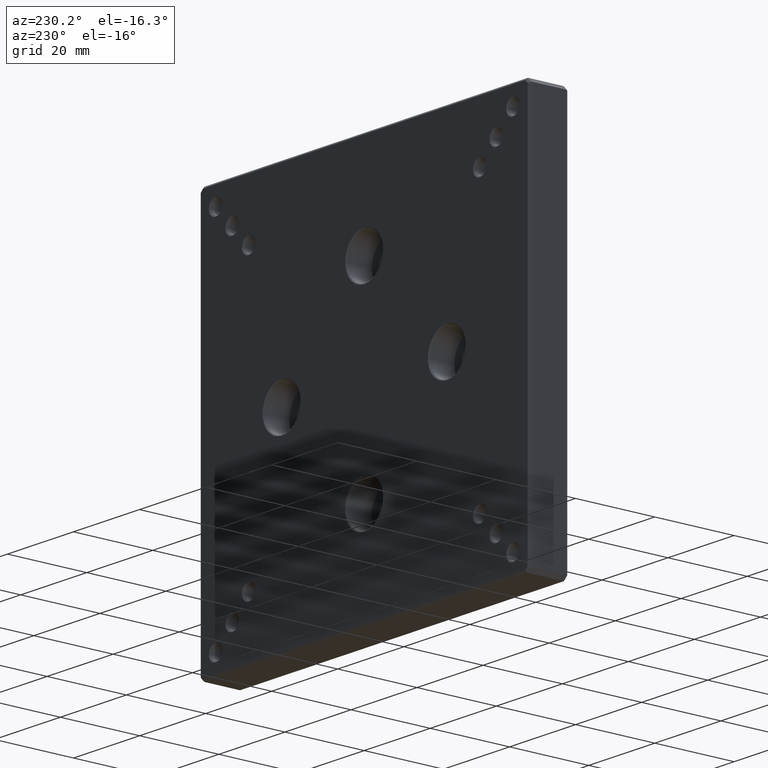
[diagram: clean part render]
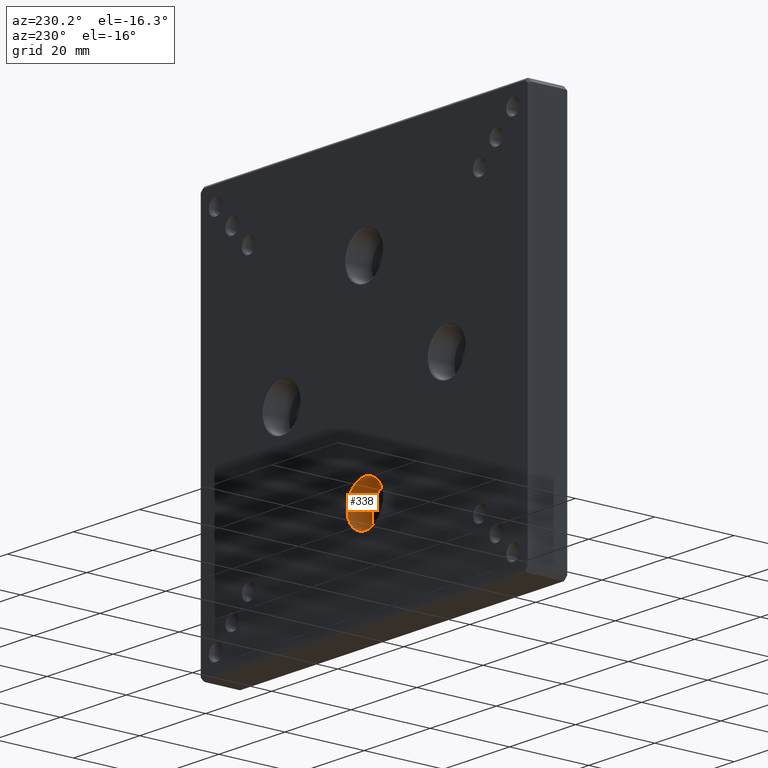
[diagram: same view with one face highlighted and labeled with its STEP entity id]
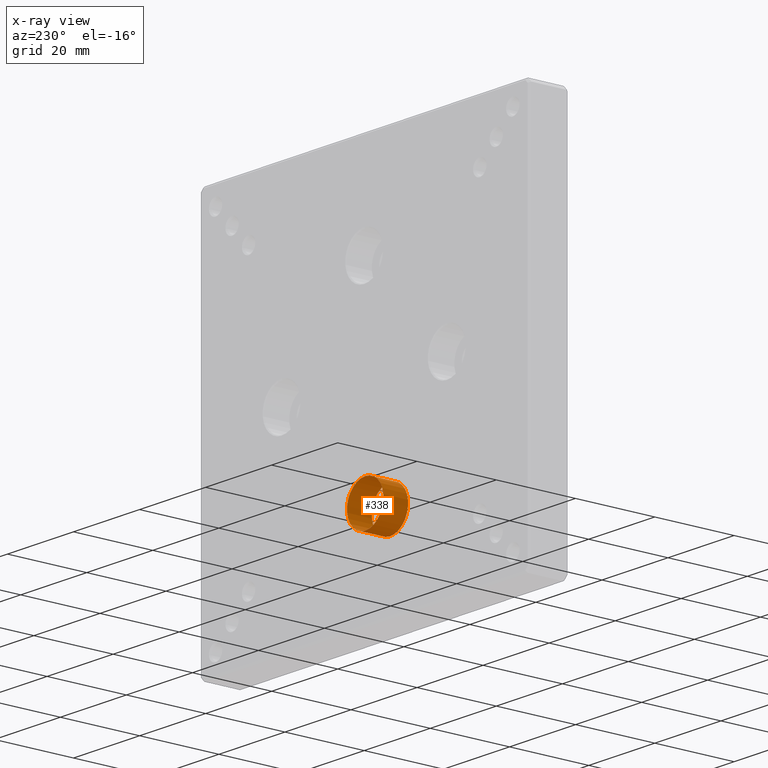
[diagram: x-ray of the same camera — body ghosted, the highlighted face saturated]
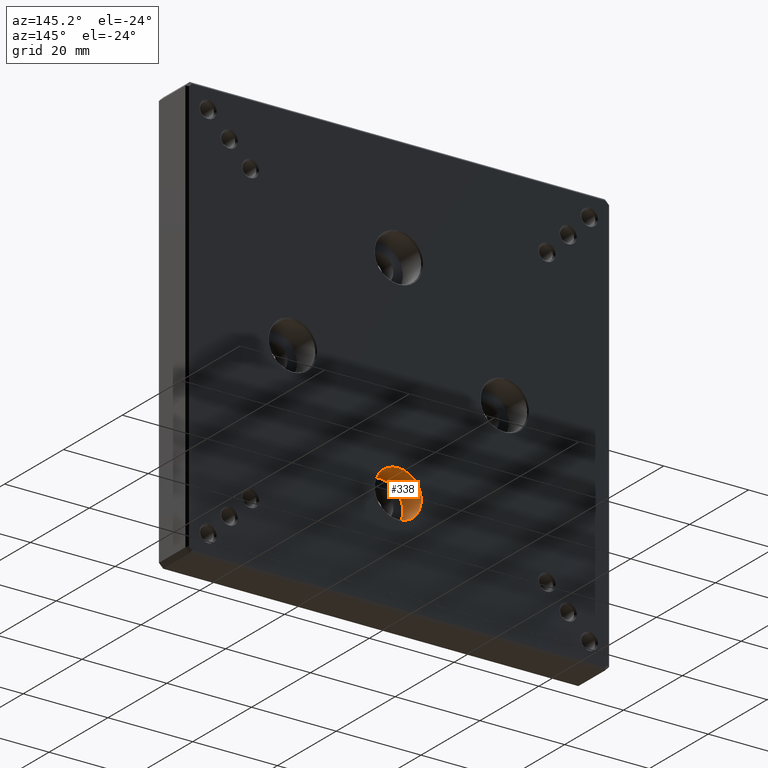
[diagram: same view with one face highlighted and labeled with its STEP entity id]
A machine part, auxiliary view. The second image highlights one B-rep face of the part: STEP entity #338.
The next image is the same camera in x-ray: the body ghosted, the highlighted face saturated — about 0% of this face is hidden behind the body in this view.
A second angle (auxiliary view) of the same face is appended — the face is thin or edge-on in the first view.
In plain terms, the highlighted cylindrical surface (bore or boss wall) has radius 5.5 mm, axis along (-0, 1, -0).
Its self-contained STEP definition (entity closure, byte-faithful):
#83 = DIRECTION ( 'NONE',  ( 0.000000000000000000, 0.000000000000000000, 1.000000000000000000 ) ) ;
#92 = CARTESIAN_POINT ( 'NONE',  ( -3.469446951953614189E-15, 9.749999999999975131, -25.00000000000000711 ) ) ;
#338 = ADVANCED_FACE ( 'NONE', ( #1579, #1378 ), #1242, .F. ) ;
#465 = EDGE_LOOP ( 'NONE', ( #1411 ) ) ;
#489 = AXIS2_PLACEMENT_3D ( 'NONE', #1357, #533, #1365 ) ;
#527 = CIRCLE ( 'NONE', #936, 5.500000000000011546 ) ;
#533 = DIRECTION ( 'NONE',  ( -0.000000000000000000, 1.000000000000000000, -0.000000000000000000 ) ) ;
#563 = DIRECTION ( 'NONE',  ( -0.000000000000000000, 1.000000000000000000, -0.000000000000000000 ) ) ;
#705 = EDGE_CURVE ( 'NONE', #1624, #1624, #1646, .T. ) ;
#731 = DIRECTION ( 'NONE',  ( 0.000000000000000000, 0.000000000000000000, 1.000000000000000000 ) ) ;
#897 = ORIENTED_EDGE ( 'NONE', *, *, #1669, .T. ) ;
#936 = AXIS2_PLACEMENT_3D ( 'NONE', #92, #1756, #83 ) ;
#987 = VERTEX_POINT ( 'NONE', #1696 ) ;
#1200 = EDGE_LOOP ( 'NONE', ( #897 ) ) ;
#1224 = CARTESIAN_POINT ( 'NONE',  ( -3.469446951953614189E-15, 3.499999999999999556, -19.49999999999999645 ) ) ;
#1242 = CYLINDRICAL_SURFACE ( 'NONE', #1371, 5.500000000000011546 ) ;
#1357 = CARTESIAN_POINT ( 'NONE',  ( -3.469446951953614189E-15, 3.499999999999999556, -25.00000000000000711 ) ) ;
#1365 = DIRECTION ( 'NONE',  ( 0.000000000000000000, 0.000000000000000000, 1.000000000000000000 ) ) ;
#1371 = AXIS2_PLACEMENT_3D ( 'NONE', #1697, #563, #731 ) ;
#1378 = FACE_OUTER_BOUND ( 'NONE', #465, .T. ) ;
#1411 = ORIENTED_EDGE ( 'NONE', *, *, #705, .F. ) ;
#1579 = FACE_OUTER_BOUND ( 'NONE', #1200, .T. ) ;
#1624 = VERTEX_POINT ( 'NONE', #1224 ) ;
#1646 = CIRCLE ( 'NONE', #489, 5.500000000000011546 ) ;
#1669 = EDGE_CURVE ( 'NONE', #987, #987, #527, .T. ) ;
#1696 = CARTESIAN_POINT ( 'NONE',  ( -3.469446951953614189E-15, 9.749999999999975131, -19.49999999999999645 ) ) ;
#1697 = CARTESIAN_POINT ( 'NONE',  ( -3.469446951953614189E-15, 10.00000000000000000, -25.00000000000000711 ) ) ;
#1756 = DIRECTION ( 'NONE',  ( 0.000000000000000000, 1.000000000000000000, 0.000000000000000000 ) ) ;